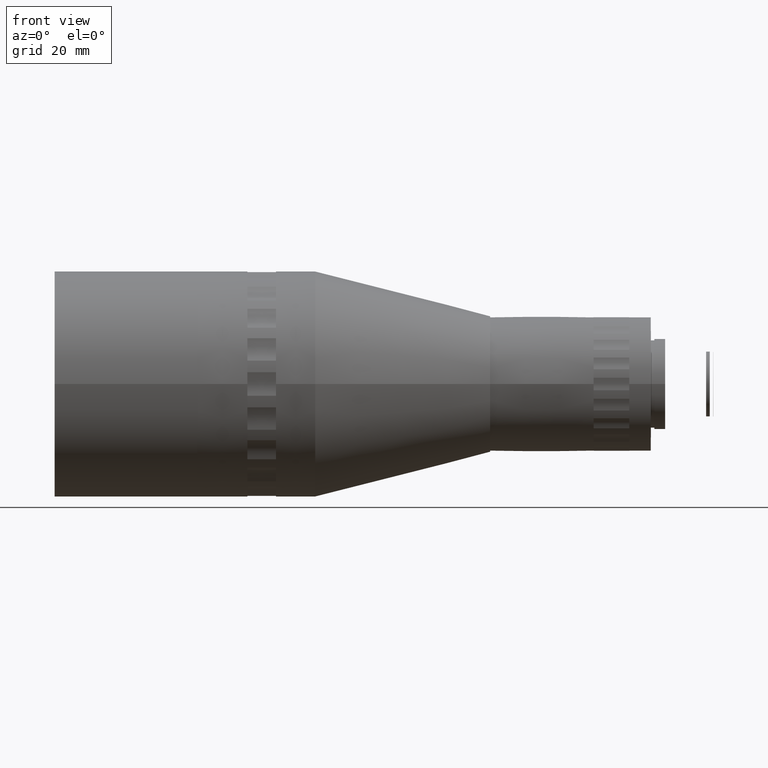
[diagram: clean part render]
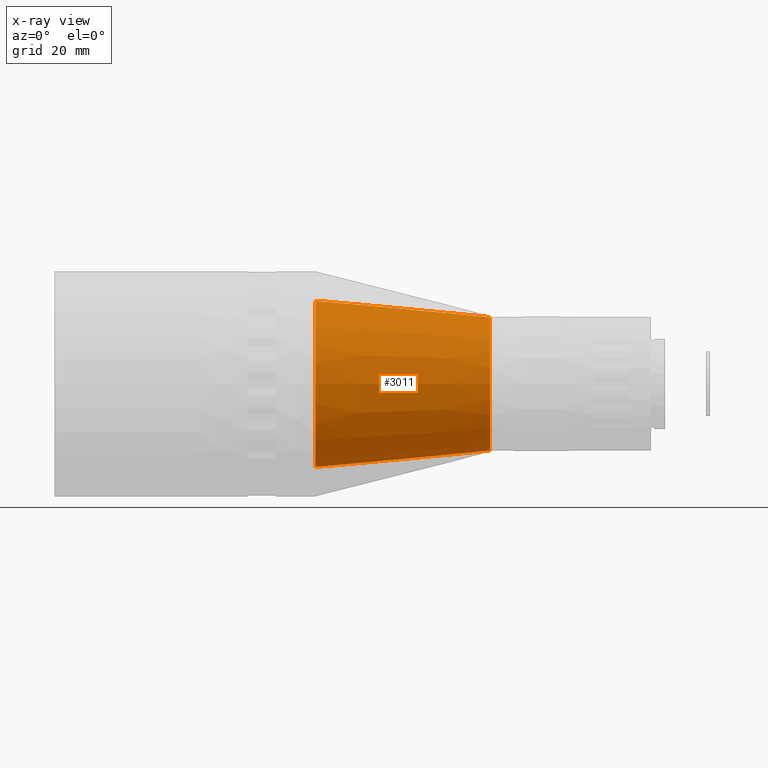
[diagram: x-ray — body ghosted, one internal face saturated and labeled with its STEP entity id]
A machine part, front view, then the same camera in x-ray: the body is ghosted and one INTERNAL B-rep face — a face not visible from any outside direction — is saturated and labeled: STEP entity #3011.
In plain terms, the highlighted conical surface has half-angle 5.405 deg.
Its self-contained STEP definition (entity closure, byte-faithful):
#117 = CARTESIAN_POINT ( 'NONE',  ( 62.63093621955190571, 5.711987127917014462, -0.6039616615827261281 ) ) ;
#178 = DIRECTION ( 'NONE',  ( -1.000000000000000000, -1.226679102604723662E-16, -0.000000000000000000 ) ) ;
#254 = FACE_BOUND ( 'NONE', #916, .T. ) ;
#449 = ORIENTED_EDGE ( 'NONE', *, *, #1269, .F. ) ;
#681 = DIRECTION ( 'NONE',  ( 1.480368061644352835E-16, -1.000000000000000000, 0.000000000000000000 ) ) ;
#916 = EDGE_LOOP ( 'NONE', ( #449 ) ) ;
#1224 = DIRECTION ( 'NONE',  ( -1.000000000000000000, -1.226679102604723662E-16, -0.000000000000000000 ) ) ;
#1225 = VERTEX_POINT ( 'NONE', #2306 ) ;
#1251 = CARTESIAN_POINT ( 'NONE',  ( 13.63093621955187373, 5.711987127917008245, -0.6039616615827261281 ) ) ;
#1269 = EDGE_CURVE ( 'NONE', #3969, #3969, #3116, .T. ) ;
#1595 = ORIENTED_EDGE ( 'NONE', *, *, #2421, .T. ) ;
#1705 = CARTESIAN_POINT ( 'NONE',  ( 13.63093621955187373, 5.711987127917008245, -0.6039616615827261281 ) ) ;
#1727 = FACE_OUTER_BOUND ( 'NONE', #3979, .T. ) ;
#1850 = CARTESIAN_POINT ( 'NONE',  ( 62.63093621955190571, -13.08801287208298092, -0.6039616615827261281 ) ) ;
#2306 = CARTESIAN_POINT ( 'NONE',  ( 13.63093621955187729, -17.72439360634340488, -0.6039616615827261281 ) ) ;
#2421 = EDGE_CURVE ( 'NONE', #1225, #1225, #3238, .T. ) ;
#2667 = AXIS2_PLACEMENT_3D ( 'NONE', #117, #1224, #3989 ) ;
#3011 = ADVANCED_FACE ( 'NONE', ( #254, #1727 ), #3088, .F. ) ;
#3085 = AXIS2_PLACEMENT_3D ( 'NONE', #1251, #178, #3800 ) ;
#3088 = CONICAL_SURFACE ( 'NONE', #4137, 23.43638073426041402, 0.09433914620963440578 ) ;
#3116 = CIRCLE ( 'NONE', #2667, 18.79999999999999716 ) ;
#3238 = CIRCLE ( 'NONE', #3085, 23.43638073426041402 ) ;
#3800 = DIRECTION ( 'NONE',  ( 1.480368061644352835E-16, -1.000000000000000000, 0.000000000000000000 ) ) ;
#3803 = DIRECTION ( 'NONE',  ( -1.000000000000000000, -1.226679102604723662E-16, -0.000000000000000000 ) ) ;
#3969 = VERTEX_POINT ( 'NONE', #1850 ) ;
#3979 = EDGE_LOOP ( 'NONE', ( #1595 ) ) ;
#3989 = DIRECTION ( 'NONE',  ( 0.000000000000000000, -1.000000000000000000, 0.000000000000000000 ) ) ;
#4137 = AXIS2_PLACEMENT_3D ( 'NONE', #1705, #3803, #681 ) ;